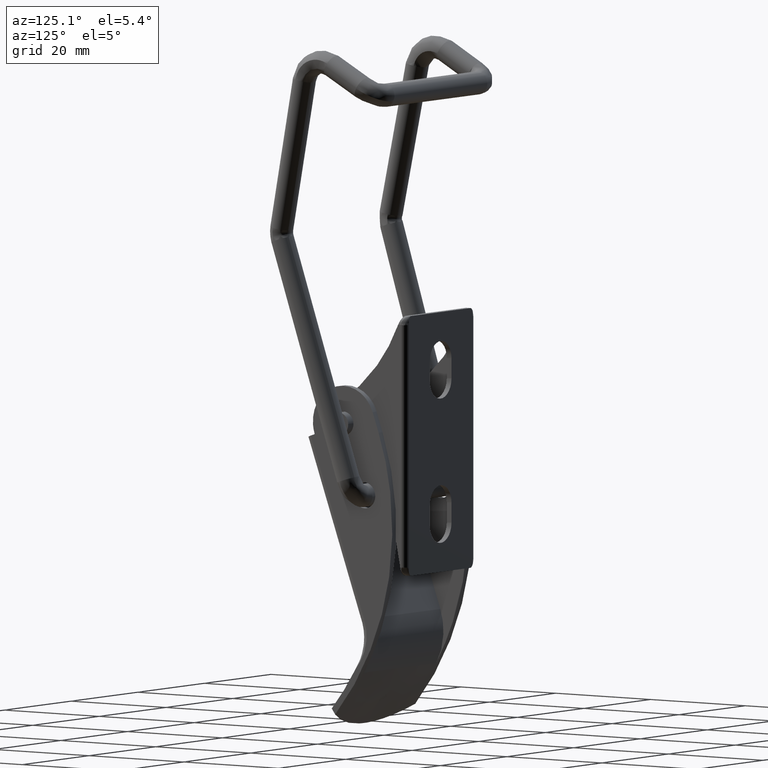
[diagram: clean part render]
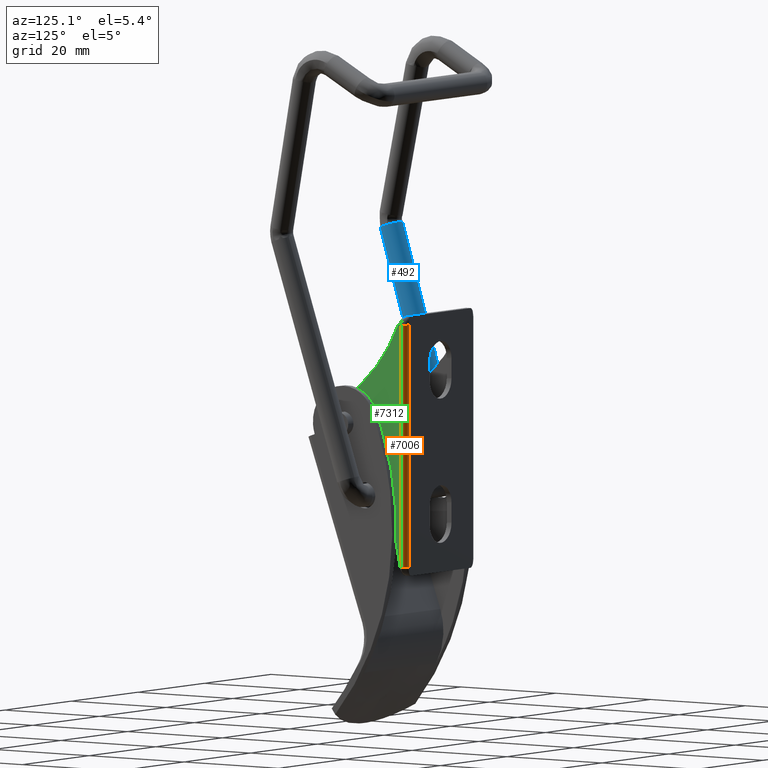
[diagram: same view with three faces highlighted in distinct colors, each labeled with its STEP entity id]
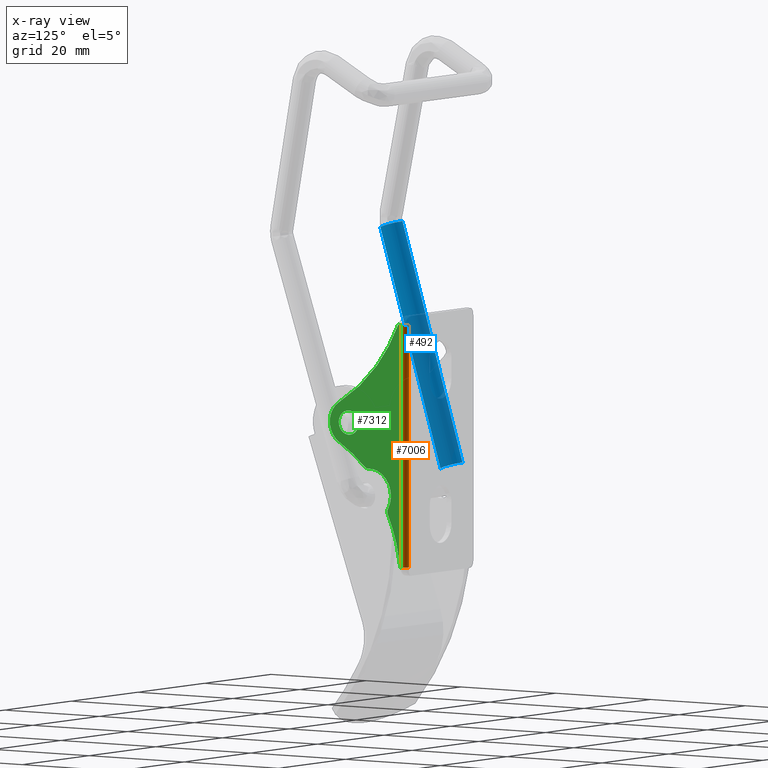
[diagram: x-ray of the same camera — body ghosted, the three highlighted faces saturated]
A machine part, auxiliary view with three faces highlighted in distinct colors.
The next image is the same camera in x-ray (body ghosted, the three faces saturated) — at least one of them is partly hidden behind the body in this view.
Their STEP definitions:

[orange] entity #7006 — the highlighted face is a freeform B-spline surface patch.
#6627=CARTESIAN_POINT('',(10.500000000000000,11.000617270611199,-24.500000000000000));
#6628=VERTEX_POINT('',#6627);
#6931=CARTESIAN_POINT('',(9.500000000000000,12.000617270611141,-24.500000000000000));
#6932=VERTEX_POINT('',#6931);
#6950=CARTESIAN_POINT('',(9.499999999999998,12.000617270611199,-24.500000000000000));
#6951=CARTESIAN_POINT('',(9.761799387799165,12.000617270611199,-24.500000000000000));
#6952=CARTESIAN_POINT('',(10.021986658763320,11.892844174221000,-24.500000000000000));
#6953=CARTESIAN_POINT('',(10.392226903609860,11.522603929374419,-24.500000000000000));
#6954=CARTESIAN_POINT('',(10.500000000000030,11.262416658410260,-24.500000000000000));
#6955=CARTESIAN_POINT('',(10.500000000000000,11.000617270611089,-24.500000000000000));
#6956=B_SPLINE_CURVE_WITH_KNOTS('',3,(#6950,#6951,#6952,#6953,#6954,#6955),.UNSPECIFIED.,.F.,.U.,(4,2,4),(0.0,0.500000000000000,1.0),.UNSPECIFIED.);
#6957=EDGE_CURVE('',#6932,#6628,#6956,.T.);
#6962=CARTESIAN_POINT('',(10.499657324975560,10.974440322303330,18.550000000000001));
#6963=CARTESIAN_POINT('',(10.499657324975560,10.974440322303330,-25.576250000000002));
#6964=CARTESIAN_POINT('',(10.528224451195992,12.065374859205319,18.550000000000001));
#6965=CARTESIAN_POINT('',(10.528224451195992,12.065374859205319,-25.576250000000009));
#6966=CARTESIAN_POINT('',(9.438951460465146,11.998752069033070,18.550000000000001));
#6967=CARTESIAN_POINT('',(9.438951460465146,11.998752069033070,-25.576250000000002));
#6975=(BOUNDED_SURFACE()B_SPLINE_SURFACE(1,2,((#6962,#6964,#6966),(#6963,#6965,#6967)),.UNSPECIFIED.,.F.,.F.,.U.)B_SPLINE_SURFACE_WITH_KNOTS((2,2),(3,3),(0.0,44.126249999999999),(0.0,1.0),.UNSPECIFIED.)GEOMETRIC_REPRESENTATION_ITEM()RATIONAL_B_SPLINE_SURFACE(((1.0,0.675590207615660,1.0),(1.0,0.675590207615660,1.0)))REPRESENTATION_ITEM('')SURFACE());
#6976=CARTESIAN_POINT('',(9.500000000000000,12.000617270611141,17.500000000000000));
#6977=VERTEX_POINT('',#6976);
#6978=CARTESIAN_POINT('',(10.500000000000000,11.000617270611199,17.500000000000000));
#6979=VERTEX_POINT('',#6978);
#6980=CARTESIAN_POINT('',(9.500000000000000,12.000617270611141,17.500000000000000));
#6981=CARTESIAN_POINT('',(10.500000000000066,12.000617270611148,17.499999999999677));
#6982=CARTESIAN_POINT('',(10.500000000000000,11.000617270611080,17.499999999999599));
#6990=(BOUNDED_CURVE()B_SPLINE_CURVE(2,(#6980,#6981,#6982),.UNSPECIFIED.,.F.,.U.)CURVE()GEOMETRIC_REPRESENTATION_ITEM()QUASI_UNIFORM_CURVE()RATIONAL_B_SPLINE_CURVE((1.0,0.707106781186525,1.0))REPRESENTATION_ITEM(''));
#6991=EDGE_CURVE('',#6977,#6979,#6990,.T.);
#6992=ORIENTED_EDGE('',*,*,#6991,.T.);
#6993=CARTESIAN_POINT('',(10.500000000000000,11.000617270611199,-24.500000000000000));
#6994=CARTESIAN_POINT('',(10.500000000000000,11.000617270611199,17.500000000000000));
#6995=QUASI_UNIFORM_CURVE('',1,(#6993,#6994),.UNSPECIFIED.,.F.,.U.);
#6996=EDGE_CURVE('',#6628,#6979,#6995,.T.);
#6997=ORIENTED_EDGE('',*,*,#6996,.F.);
#6998=ORIENTED_EDGE('',*,*,#6957,.F.);
#6999=CARTESIAN_POINT('',(9.500000000000000,12.000617270611141,17.500000000000000));
#7000=CARTESIAN_POINT('',(9.500000000000000,12.000617270611141,-24.500000000000000));
#7001=QUASI_UNIFORM_CURVE('',1,(#6999,#7000),.UNSPECIFIED.,.F.,.U.);
#7002=EDGE_CURVE('',#6977,#6932,#7001,.T.);
#7003=ORIENTED_EDGE('',*,*,#7002,.F.);
#7004=EDGE_LOOP('',(#6992,#6997,#6998,#7003));
#7005=FACE_OUTER_BOUND('',#7004,.T.);
#7006=ADVANCED_FACE('',(#7005),#6975,.T.);

[blue] entity #492 — the highlighted face is a freeform B-spline surface patch.
#243=CARTESIAN_POINT('',(-16.229094745200509,5.220109949041339,-8.737732753376832));
#244=VERTEX_POINT('',#243);
#258=CARTESIAN_POINT('',(-13.595820227116830,4.019041601811022,-9.071823122770741));
#259=VERTEX_POINT('',#258);
#260=CARTESIAN_POINT('',(-16.229094745200509,5.220109949041339,-8.737732753376832));
#261=CARTESIAN_POINT('',(-16.191203265709440,5.234056654953594,-8.732429679847080));
#262=CARTESIAN_POINT('',(-16.152855429270719,5.246896262957101,-8.727475537719077));
#263=CARTESIAN_POINT('',(-15.865093945377771,5.333791895112183,-8.693359985788574));
#264=CARTESIAN_POINT('',(-15.600138367961669,5.361746021659623,-8.678800795750966));
#265=CARTESIAN_POINT('',(-15.078298585691719,5.318953419551921,-8.681804400776397));
#266=CARTESIAN_POINT('',(-14.821619702508571,5.248223527958379,-8.699366014049133));
#267=CARTESIAN_POINT('',(-14.355432238680089,5.018757426345045,-8.763961863188845));
#268=CARTESIAN_POINT('',(-14.146107082894639,4.860111501437572,-8.810970683347568));
#269=CARTESIAN_POINT('',(-13.806544752875659,4.478906034173845,-8.927324644132874));
#270=CARTESIAN_POINT('',(-13.676441181918980,4.256496479890716,-8.996624004444437));
#271=CARTESIAN_POINT('',(-13.595820227116830,4.019041601811022,-9.071823122770741));
#272=B_SPLINE_CURVE_WITH_KNOTS('',3,(#260,#261,#262,#263,#264,#265,#266,#267,#268,#269,#270,#271),.UNSPECIFIED.,.F.,.U.,(4,2,2,2,2,4),(0.740277488078961,0.750000000000001,0.812500000000001,0.875000000000000,0.937500000000000,1.0),.UNSPECIFIED.);
#273=EDGE_CURVE('',#244,#259,#272,.T.);
#354=CARTESIAN_POINT('',(-14.767336214601990,1.669019821388381,-9.856995765366159));
#355=VERTEX_POINT('',#354);
#356=CARTESIAN_POINT('',(-13.595820227116830,4.019041601811022,-9.071823122770741));
#357=CARTESIAN_POINT('',(-13.515199222662460,3.781586603270290,-9.147022279063615));
#358=CARTESIAN_POINT('',(-13.484124114770280,3.529272746074476,-9.228062141500704));
#359=CARTESIAN_POINT('',(-13.525749531569179,3.032957676309384,-9.389608431115732));
#360=CARTESIAN_POINT('',(-13.598433678436249,2.789151742526407,-9.470051296727066));
#361=CARTESIAN_POINT('',(-13.836589428570511,2.346991070342101,-9.618151605198248));
#362=CARTESIAN_POINT('',(-14.001967327719759,2.148810303284128,-9.685750776910902));
#363=CARTESIAN_POINT('',(-14.369406509218770,1.853062384309952,-9.789138450707556));
#364=CARTESIAN_POINT('',(-14.561647556546699,1.744729505325362,-9.828208142577548));
#365=CARTESIAN_POINT('',(-14.767336214601990,1.669019821388381,-9.856995765366159));
#366=B_SPLINE_CURVE_WITH_KNOTS('',3,(#356,#357,#358,#359,#360,#361,#362,#363,#364,#365),.UNSPECIFIED.,.F.,.U.,(4,2,2,2,4),(0.0,0.062500000000000,0.125000000000001,0.187500000000001,0.240277488080290),.UNSPECIFIED.);
#367=EDGE_CURVE('',#259,#355,#366,.T.);
#406=CARTESIAN_POINT('',(-15.620181323535920,-11.609666205846660,31.158744362473190));
#407=VERTEX_POINT('',#406);
#408=CARTESIAN_POINT('',(-15.620181323535920,-11.609666205846660,31.158744362473190));
#409=CARTESIAN_POINT('',(-14.767336214601990,1.669019821388381,-9.856995765366159));
#410=QUASI_UNIFORM_CURVE('',1,(#408,#409),.UNSPECIFIED.,.F.,.U.);
#411=EDGE_CURVE('',#407,#355,#410,.T.);
#426=CARTESIAN_POINT('',(-17.081895015055860,-8.058684084210874,32.277973340098768));
#427=VERTEX_POINT('',#426);
#437=CARTESIAN_POINT('',(-17.081895015055860,-8.058684084210874,32.277973340098768));
#438=CARTESIAN_POINT('',(-16.229094745200509,5.220109949041339,-8.737732753376832));
#439=QUASI_UNIFORM_CURVE('',1,(#437,#438),.UNSPECIFIED.,.F.,.U.);
#440=EDGE_CURVE('',#427,#244,#439,.T.);
#446=CARTESIAN_POINT('',(-17.103244228209270,-8.390583544956204,33.303388173777300));
#447=CARTESIAN_POINT('',(-15.241996865747046,-7.706435403158133,33.563579595237861));
#448=CARTESIAN_POINT('',(-14.511111374069509,-9.481995503984450,33.003943350513737));
#449=CARTESIAN_POINT('',(-13.780225882391962,-11.257555604810767,32.444307105789619));
#450=CARTESIAN_POINT('',(-15.641473244854179,-11.941703746608839,32.184115684329072));
#451=CARTESIAN_POINT('',(-16.207247390163751,5.560392699317856,-9.788755919357460));
#452=CARTESIAN_POINT('',(-14.346000027701528,6.244540841115926,-9.528564497896904));
#453=CARTESIAN_POINT('',(-13.615114536023979,4.468980740289609,-10.088200742621019));
#454=CARTESIAN_POINT('',(-12.884229044346434,2.693420639463292,-10.647836987345132));
#455=CARTESIAN_POINT('',(-14.745476406808660,2.009272497665221,-10.908028408805690));
#463=(BOUNDED_SURFACE()B_SPLINE_SURFACE(2,1,((#446,#451),(#447,#452),(#448,#453),(#449,#454),(#450,#455)),.UNSPECIFIED.,.F.,.F.,.U.)B_SPLINE_SURFACE_WITH_KNOTS((3,2,3),(2,2),(0.0,3.313708498984763,6.627416997969525),(0.0,45.303039975762950),.UNSPECIFIED.)GEOMETRIC_REPRESENTATION_ITEM()RATIONAL_B_SPLINE_SURFACE(((1.0,1.0),(0.707106781186548,0.707106781186548),(1.0,1.0),(0.707106781186548,0.707106781186548),(1.0,1.0)))REPRESENTATION_ITEM('')SURFACE());
#464=ORIENTED_EDGE('',*,*,#367,.F.);
#465=ORIENTED_EDGE('',*,*,#273,.F.);
#466=ORIENTED_EDGE('',*,*,#440,.F.);
#467=CARTESIAN_POINT('',(-14.448642916505220,-9.259698428429999,31.943899987887729));
#468=VERTEX_POINT('',#467);
#469=CARTESIAN_POINT('',(-17.081895015055860,-8.058684084210874,32.277973340098768));
#470=CARTESIAN_POINT('',(-17.044042310587649,-8.044673267545150,32.283296363095388));
#471=CARTESIAN_POINT('',(-17.005712225666262,-8.031794473398504,32.288262822541547));
#472=CARTESIAN_POINT('',(-16.468912092047962,-7.869704958182259,32.351900366143127));
#473=CARTESIAN_POINT('',(-15.907550890201000,-7.915747879794528,32.348666230392702));
#474=CARTESIAN_POINT('',(-14.975167908262049,-8.374699485486794,32.219468418081817));
#475=CARTESIAN_POINT('',(-14.609887586599401,-8.784782022354545,32.094300320036702));
#476=CARTESIAN_POINT('',(-14.448642916505220,-9.259698428429999,31.943899987887729));
#477=B_SPLINE_CURVE_WITH_KNOTS('',3,(#469,#470,#471,#472,#473,#474,#475,#476),.UNSPECIFIED.,.F.,.U.,(4,2,2,4),(0.740274445074738,0.750000000000000,0.875000000000000,1.0),.UNSPECIFIED.);
#478=EDGE_CURVE('',#427,#468,#477,.T.);
#479=ORIENTED_EDGE('',*,*,#478,.T.);
#480=CARTESIAN_POINT('',(-14.448642916505220,-9.259698428429999,31.943899987887729));
#481=CARTESIAN_POINT('',(-14.287397788146500,-9.734615940149237,31.793499307317781));
#482=CARTESIAN_POINT('',(-14.332171064926200,-10.268525844990981,31.619716329676450));
#483=CARTESIAN_POINT('',(-14.789944761673731,-11.118464949248921,31.335032327625090));
#484=CARTESIAN_POINT('',(-15.171530089884969,-11.443582987919790,31.221842014535490));
#485=CARTESIAN_POINT('',(-15.620181323535920,-11.609666205846660,31.158744362473190));
#486=B_SPLINE_CURVE_WITH_KNOTS('',3,(#480,#481,#482,#483,#484,#485),.UNSPECIFIED.,.F.,.U.,(4,2,4),(0.0,0.125000000000000,0.240274445076872),.UNSPECIFIED.);
#487=EDGE_CURVE('',#468,#407,#486,.T.);
#488=ORIENTED_EDGE('',*,*,#487,.T.);
#489=ORIENTED_EDGE('',*,*,#411,.T.);
#490=EDGE_LOOP('',(#464,#465,#466,#479,#488,#489));
#491=FACE_OUTER_BOUND('',#490,.T.);
#492=ADVANCED_FACE('',(#491),#463,.T.);

[green] entity #7312 — the highlighted face is a freeform B-spline surface patch.
#5165=CARTESIAN_POINT('',(10.500000000000000,-2.099920038428549,0.018325725258183));
#5166=VERTEX_POINT('',#5165);
#5172=CARTESIAN_POINT('',(10.500000000000000,0.0,-2.100000000000000));
#5173=VERTEX_POINT('',#5172);
#5174=CARTESIAN_POINT('',(10.499999999999996,-2.099920038428550,0.018325725258183));
#5175=CARTESIAN_POINT('',(10.500000000000000,-2.100000000000001,0.009163037079292));
#5176=CARTESIAN_POINT('',(10.500000000000000,-2.100000000000000,0.0));
#5177=CARTESIAN_POINT('',(10.500000000000002,-2.100000000000000,-2.100000000000000));
#5178=CARTESIAN_POINT('',(10.500000000000000,0.0,-2.100000000000000));
#5186=(BOUNDED_CURVE()B_SPLINE_CURVE(2,(#5174,#5175,#5176,#5177,#5178),.UNSPECIFIED.,.F.,.U.)B_SPLINE_CURVE_WITH_KNOTS((3,2,3),(0.248460105605324,0.250000000000000,0.500000000000000),.UNSPECIFIED.)CURVE()GEOMETRIC_REPRESENTATION_ITEM()RATIONAL_B_SPLINE_CURVE((0.996414027962268,0.998195901496442,1.0,0.707106781186548,1.0))REPRESENTATION_ITEM(''));
#5187=EDGE_CURVE('',#5166,#5173,#5186,.T.);
#5189=CARTESIAN_POINT('',(10.500000000000000,2.099920038428549,-0.018325725258184));
#5190=VERTEX_POINT('',#5189);
#5191=CARTESIAN_POINT('',(10.500000000000000,0.0,-2.100000000000000));
#5192=CARTESIAN_POINT('',(10.500000000000002,2.081753541543985,-2.099999999999999));
#5193=CARTESIAN_POINT('',(10.499999999999998,2.099920038428550,-0.018325725258184));
#5201=(BOUNDED_CURVE()B_SPLINE_CURVE(2,(#5191,#5192,#5193),.UNSPECIFIED.,.F.,.U.)B_SPLINE_CURVE_WITH_KNOTS((3,3),(0.500000000000000,0.748460105605324),.UNSPECIFIED.)CURVE()GEOMETRIC_REPRESENTATION_ITEM()RATIONAL_B_SPLINE_CURVE((1.0,0.708910879690106,0.996414027962268))REPRESENTATION_ITEM(''));
#5202=EDGE_CURVE('',#5173,#5190,#5201,.T.);
#5248=CARTESIAN_POINT('',(10.500000000000000,0.0,2.100000000000000));
#5249=VERTEX_POINT('',#5248);
#5250=CARTESIAN_POINT('',(10.499999999999998,2.099920038428550,-0.018325725258184));
#5251=CARTESIAN_POINT('',(10.500000000000002,2.100000000000001,-0.009163037079293));
#5252=CARTESIAN_POINT('',(10.500000000000000,2.100000000000000,0.0));
#5253=CARTESIAN_POINT('',(10.500000000000002,2.100000000000000,2.100000000000000));
#5254=CARTESIAN_POINT('',(10.500000000000000,0.0,2.100000000000000));
#5262=(BOUNDED_CURVE()B_SPLINE_CURVE(2,(#5250,#5251,#5252,#5253,#5254),.UNSPECIFIED.,.F.,.U.)B_SPLINE_CURVE_WITH_KNOTS((3,2,3),(0.748460105605324,0.750000000000000,1.0),.UNSPECIFIED.)CURVE()GEOMETRIC_REPRESENTATION_ITEM()RATIONAL_B_SPLINE_CURVE((0.996414027962268,0.998195901496442,1.0,0.707106781186548,1.0))REPRESENTATION_ITEM(''));
#5263=EDGE_CURVE('',#5190,#5249,#5262,.T.);
#5265=CARTESIAN_POINT('',(10.500000000000000,0.0,2.100000000000000));
#5266=CARTESIAN_POINT('',(10.500000000000002,-2.081753541543986,2.100000000000000));
#5267=CARTESIAN_POINT('',(10.499999999999996,-2.099920038428550,0.018325725258183));
#5275=(BOUNDED_CURVE()B_SPLINE_CURVE(2,(#5265,#5266,#5267),.UNSPECIFIED.,.F.,.U.)B_SPLINE_CURVE_WITH_KNOTS((3,3),(0.0,0.248460105605324),.UNSPECIFIED.)CURVE()GEOMETRIC_REPRESENTATION_ITEM()RATIONAL_B_SPLINE_CURVE((1.0,0.708910879690106,0.996414027962268))REPRESENTATION_ITEM(''));
#5276=EDGE_CURVE('',#5249,#5166,#5275,.T.);
#6008=CARTESIAN_POINT('',(10.500000000000000,8.223194748218100,-15.464259301757551));
#6009=VERTEX_POINT('',#6008);
#6015=CARTESIAN_POINT('',(10.500000000000000,8.267387313801040,-14.528337409667721));
#6016=VERTEX_POINT('',#6015);
#6017=CARTESIAN_POINT('',(10.500000000000000,8.267387313801049,-14.528337409667730));
#6018=CARTESIAN_POINT('',(10.500000000000000,7.997143700092096,-14.984581280507438));
#6019=CARTESIAN_POINT('',(10.500000000000000,8.223194748218107,-15.464259301757551));
#6027=(BOUNDED_CURVE()B_SPLINE_CURVE(2,(#6017,#6018,#6019),.UNSPECIFIED.,.F.,.U.)CURVE()GEOMETRIC_REPRESENTATION_ITEM()QUASI_UNIFORM_CURVE()RATIONAL_B_SPLINE_CURVE((1.0,0.883472867304679,1.0))REPRESENTATION_ITEM(''));
#6028=EDGE_CURVE('',#6016,#6009,#6027,.T.);
#6139=CARTESIAN_POINT('',(10.500000000000000,4.115764922230710,-7.743710354279020));
#6140=VERTEX_POINT('',#6139);
#6164=CARTESIAN_POINT('',(10.500000000000000,8.267387313801040,-14.528337409667721));
#6165=CARTESIAN_POINT('',(10.500000000000000,8.448707663561326,-14.222372751393660));
#6166=CARTESIAN_POINT('',(10.499999999999989,8.738202282298447,-13.567166077081909));
#6167=CARTESIAN_POINT('',(10.500000000000020,8.920556416707623,-12.560233888295880));
#6168=CARTESIAN_POINT('',(10.499999999999950,8.882731009682859,-11.641725346045600));
#6169=CARTESIAN_POINT('',(10.500000000000069,8.670165430049575,-10.722671111517981));
#6170=CARTESIAN_POINT('',(10.499999999999980,8.289178480769667,-9.911386837505637));
#6171=CARTESIAN_POINT('',(10.499999999999890,7.655939762008431,-9.079699284705789));
#6172=CARTESIAN_POINT('',(10.500000000000369,6.871565768664859,-8.419101797648978));
#6173=CARTESIAN_POINT('',(10.499999999999680,5.878964520363426,-7.944793171366220));
#6174=CARTESIAN_POINT('',(10.500000000000520,4.955533854972742,-7.741042954037209));
#6175=CARTESIAN_POINT('',(10.499999999999430,4.369298038363570,-7.727903386176614));
#6176=CARTESIAN_POINT('',(10.500000000000000,4.115764922230710,-7.743710354279020));
#6177=B_SPLINE_CURVE_WITH_KNOTS('',3,(#6164,#6165,#6166,#6167,#6168,#6169,#6170,#6171,#6172,#6173,#6174,#6175,#6176),.UNSPECIFIED.,.F.,.U.,(4,1,1,1,1,1,1,1,1,1,4),(0.000000229101625,1.066963626719973,2.133936123376133,3.048497786001388,3.810637632936832,4.953743318613481,5.715896395438236,6.935277962240482,8.002277483598103,8.993042776199546,9.755132007692502),.UNSPECIFIED.);
#6178=EDGE_CURVE('',#6016,#6140,#6177,.T.);
#6252=CARTESIAN_POINT('',(10.500000000000000,3.369383317328430,-7.474947730867680));
#6253=VERTEX_POINT('',#6252);
#6254=CARTESIAN_POINT('',(10.500000000000000,3.369383317328436,-7.474947730867672));
#6255=CARTESIAN_POINT('',(10.500000000000000,3.684508988922798,-7.770581916978469));
#6256=CARTESIAN_POINT('',(10.500000000000000,4.115764922230709,-7.743710354279014));
#6264=(BOUNDED_CURVE()B_SPLINE_CURVE(2,(#6254,#6255,#6256),.UNSPECIFIED.,.F.,.U.)CURVE()GEOMETRIC_REPRESENTATION_ITEM()QUASI_UNIFORM_CURVE()RATIONAL_B_SPLINE_CURVE((1.0,0.917970744648292,1.0))REPRESENTATION_ITEM(''));
#6265=EDGE_CURVE('',#6253,#6140,#6264,.T.);
#6328=CARTESIAN_POINT('',(10.500000000000000,-2.008692605810205,-3.459068373906970));
#6329=VERTEX_POINT('',#6328);
#6351=CARTESIAN_POINT('',(10.500000000000000,3.369383317328430,-7.474947730867680));
#6352=CARTESIAN_POINT('',(10.500000000000002,0.906385789473732,-5.164294124462846));
#6353=CARTESIAN_POINT('',(10.500000000000000,-2.008692605810158,-3.459068373906905));
#6361=(BOUNDED_CURVE()B_SPLINE_CURVE(2,(#6351,#6352,#6353),.UNSPECIFIED.,.F.,.U.)CURVE()GEOMETRIC_REPRESENTATION_ITEM()QUASI_UNIFORM_CURVE()RATIONAL_B_SPLINE_CURVE((1.0,0.993723219395300,1.0))REPRESENTATION_ITEM(''));
#6362=EDGE_CURVE('',#6253,#6329,#6361,.T.);
#6435=CARTESIAN_POINT('',(10.500000000000000,-2.028089534022640,3.447731550162770));
#6436=VERTEX_POINT('',#6435);
#6437=CARTESIAN_POINT('',(10.500000000000000,-2.028089534022640,3.447731550162770));
#6438=CARTESIAN_POINT('',(10.500000000000000,-2.290034689865433,3.293692051986154));
#6439=CARTESIAN_POINT('',(10.500000000000000,-2.813505911307543,2.899282915003691));
#6440=CARTESIAN_POINT('',(10.500000000000011,-3.406066635816551,2.167928235477235));
#6441=CARTESIAN_POINT('',(10.500000000000000,-3.819369566156980,1.300942816112585));
#6442=CARTESIAN_POINT('',(10.499999999999970,-4.017079306951003,0.404021523288785));
#6443=CARTESIAN_POINT('',(10.500000000000041,-3.999961382886766,-0.491535112312706));
#6444=CARTESIAN_POINT('',(10.499999999999989,-3.830344670595747,-1.213382315689106));
#6445=CARTESIAN_POINT('',(10.499999999999980,-3.563446080954295,-1.856257099632426));
#6446=CARTESIAN_POINT('',(10.500000000000060,-3.206441016098507,-2.430429288631129));
#6447=CARTESIAN_POINT('',(10.499999999999931,-2.675368101419664,-3.007912792448481));
#6448=CARTESIAN_POINT('',(10.499999999999829,-2.252724348560020,-3.317412958238309));
#6449=CARTESIAN_POINT('',(10.500000000000000,-2.008692605810205,-3.459068373906970));
#6450=B_SPLINE_CURVE_WITH_KNOTS('',3,(#6437,#6438,#6439,#6440,#6441,#6442,#6443,#6444,#6445,#6446,#6447,#6448,#6449),.UNSPECIFIED.,.F.,.U.,(4,1,1,1,1,1,1,1,1,1,4),(0.000000272026504,0.911651486305965,1.953539880941921,2.800101216604149,3.776902133074179,4.688488258192371,5.469893698923233,5.990859586510180,6.772298387828877,7.488621360853230,8.335116149911999),.UNSPECIFIED.);
#6451=EDGE_CURVE('',#6436,#6329,#6450,.T.);
#6549=CARTESIAN_POINT('',(10.500000000000000,10.849941402027300,-24.500000000000000));
#6550=VERTEX_POINT('',#6549);
#6575=CARTESIAN_POINT('',(10.500000000000000,10.849941402027270,-24.500000000000011));
#6576=CARTESIAN_POINT('',(10.500000000000002,10.253983553843051,-19.773572458828539));
#6577=CARTESIAN_POINT('',(10.500000000000000,8.223194748218059,-15.464259301757579));
#6585=(BOUNDED_CURVE()B_SPLINE_CURVE(2,(#6575,#6576,#6577),.UNSPECIFIED.,.F.,.U.)CURVE()GEOMETRIC_REPRESENTATION_ITEM()QUASI_UNIFORM_CURVE()RATIONAL_B_SPLINE_CURVE((1.0,0.987625602708450,1.0))REPRESENTATION_ITEM(''));
#6586=EDGE_CURVE('',#6550,#6009,#6585,.T.);
#6627=CARTESIAN_POINT('',(10.500000000000000,11.000617270611199,-24.500000000000000));
#6628=VERTEX_POINT('',#6627);
#6648=CARTESIAN_POINT('',(10.500000000000000,10.849941402027300,-24.500000000000000));
#6649=CARTESIAN_POINT('',(10.500000000000000,11.000617270611199,-24.500000000000000));
#6650=QUASI_UNIFORM_CURVE('',1,(#6648,#6649),.UNSPECIFIED.,.F.,.U.);
#6651=EDGE_CURVE('',#6550,#6628,#6650,.T.);
#6978=CARTESIAN_POINT('',(10.500000000000000,11.000617270611199,17.500000000000000));
#6979=VERTEX_POINT('',#6978);
#6993=CARTESIAN_POINT('',(10.500000000000000,11.000617270611199,-24.500000000000000));
#6994=CARTESIAN_POINT('',(10.500000000000000,11.000617270611199,17.500000000000000));
#6995=QUASI_UNIFORM_CURVE('',1,(#6993,#6994),.UNSPECIFIED.,.F.,.U.);
#6996=EDGE_CURVE('',#6628,#6979,#6995,.T.);
#7271=CARTESIAN_POINT('',(10.500000000000000,-4.749264241820427,-26.597899918595850));
#7272=CARTESIAN_POINT('',(10.500000000000000,-4.749264241820427,19.597901045123638));
#7273=CARTESIAN_POINT('',(10.500000000000000,11.749897688646950,-26.597899918595850));
#7274=CARTESIAN_POINT('',(10.500000000000000,11.749897688646950,19.597901045123638));
#7275=B_SPLINE_SURFACE_WITH_KNOTS('',1,1,((#7271,#7273),(#7272,#7274)),.UNSPECIFIED.,.F.,.F.,.U.,(2,2),(2,2),(0.0,46.195800963719492),(0.0,16.499161930467370),.UNSPECIFIED.);
#7276=ORIENTED_EDGE('',*,*,#6651,.T.);
#7277=ORIENTED_EDGE('',*,*,#6996,.T.);
#7278=CARTESIAN_POINT('',(10.500000000000000,10.402330665833359,17.500000000000000));
#7279=VERTEX_POINT('',#7278);
#7280=CARTESIAN_POINT('',(10.500000000000000,10.402330665833359,17.500000000000000));
#7281=CARTESIAN_POINT('',(10.500000000000000,11.000617270611199,17.500000000000000));
#7282=QUASI_UNIFORM_CURVE('',1,(#7280,#7281),.UNSPECIFIED.,.F.,.U.);
#7283=EDGE_CURVE('',#7279,#6979,#7282,.T.);
#7284=ORIENTED_EDGE('',*,*,#7283,.F.);
#7285=CARTESIAN_POINT('',(10.500000000000000,-2.028089534022640,3.447731550162770));
#7286=CARTESIAN_POINT('',(10.500000000000000,6.500075541645330,8.427861433901233));
#7287=CARTESIAN_POINT('',(10.500000000000000,10.402330665833350,17.499999999999979));
#7295=(BOUNDED_CURVE()B_SPLINE_CURVE(2,(#7285,#7286,#7287),.UNSPECIFIED.,.F.,.U.)CURVE()GEOMETRIC_REPRESENTATION_ITEM()QUASI_UNIFORM_CURVE()RATIONAL_B_SPLINE_CURVE((1.0,0.949856481128234,1.0))REPRESENTATION_ITEM(''));
#7296=EDGE_CURVE('',#6436,#7279,#7295,.T.);
#7297=ORIENTED_EDGE('',*,*,#7296,.F.);
#7298=ORIENTED_EDGE('',*,*,#6451,.T.);
#7299=ORIENTED_EDGE('',*,*,#6362,.F.);
#7300=ORIENTED_EDGE('',*,*,#6265,.T.);
#7301=ORIENTED_EDGE('',*,*,#6178,.F.);
#7302=ORIENTED_EDGE('',*,*,#6028,.T.);
#7303=ORIENTED_EDGE('',*,*,#6586,.F.);
#7304=EDGE_LOOP('',(#7276,#7277,#7284,#7297,#7298,#7299,#7300,#7301,#7302,#7303));
#7305=FACE_OUTER_BOUND('',#7304,.T.);
#7306=ORIENTED_EDGE('',*,*,#5276,.F.);
#7307=ORIENTED_EDGE('',*,*,#5263,.F.);
#7308=ORIENTED_EDGE('',*,*,#5202,.F.);
#7309=ORIENTED_EDGE('',*,*,#5187,.F.);
#7310=EDGE_LOOP('',(#7306,#7307,#7308,#7309));
#7311=FACE_BOUND('',#7310,.T.);
#7312=ADVANCED_FACE('',(#7305,#7311),#7275,.F.);